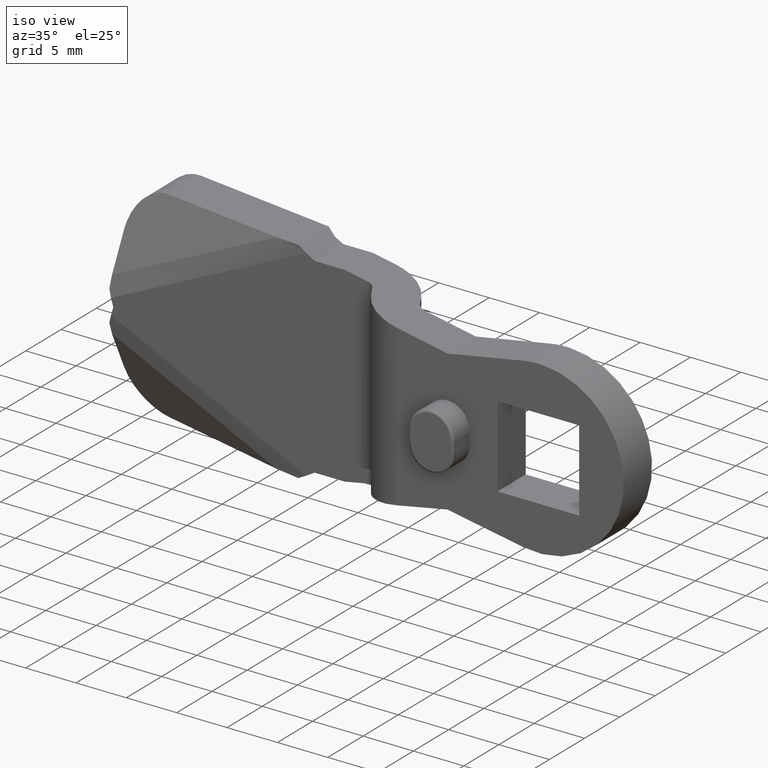
[diagram: clean part render]
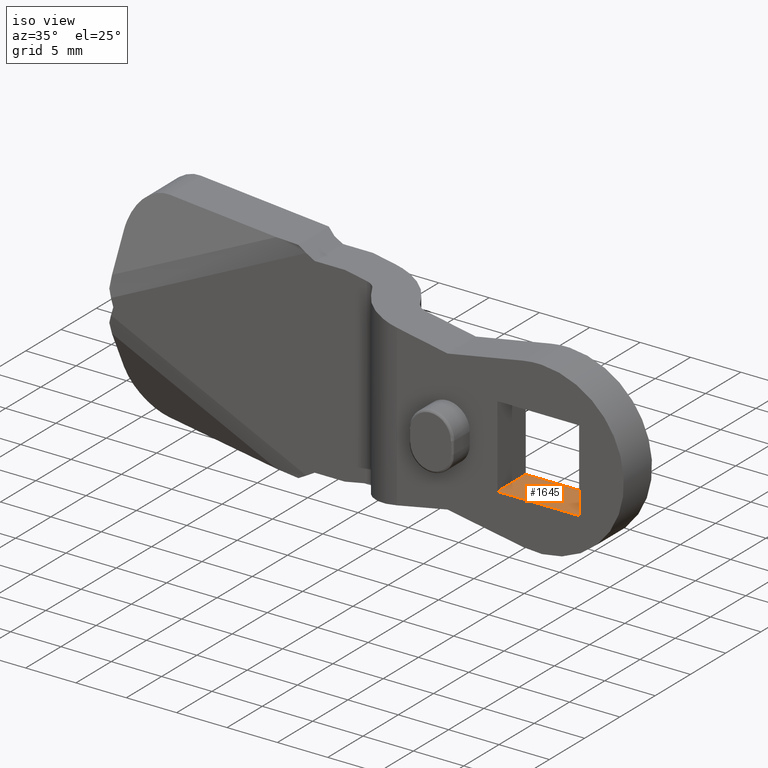
[diagram: same view with one face highlighted and labeled with its STEP entity id]
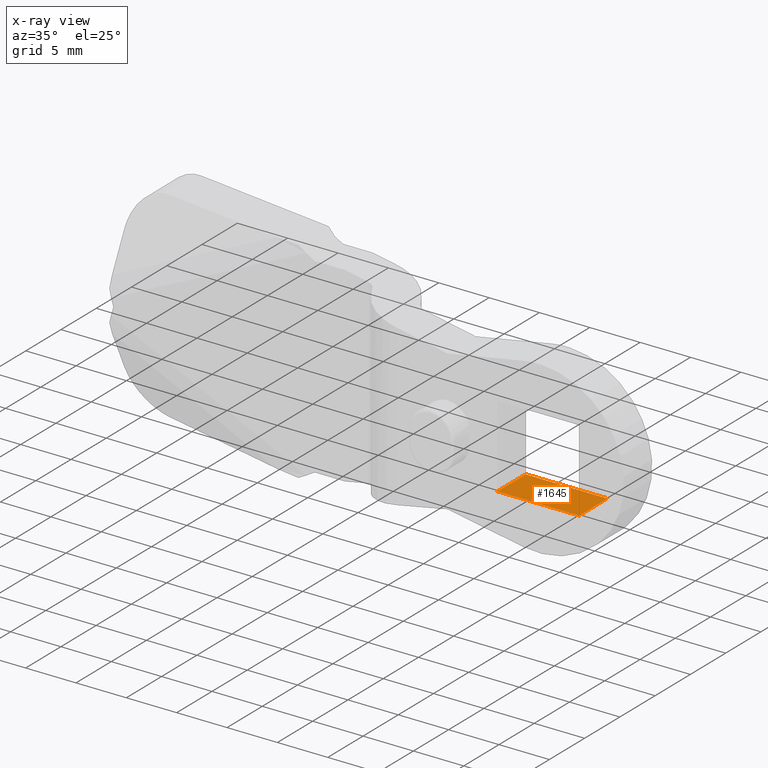
[diagram: x-ray of the same camera — body ghosted, the highlighted face saturated]
A machine part, iso view. The second image highlights one B-rep face of the part: STEP entity #1645.
The next image is the same camera in x-ray: the body ghosted, the highlighted face saturated — about 0% of this face is hidden behind the body in this view.
In plain terms, the highlighted face is a freeform B-spline surface patch.
Its self-contained STEP definition (entity closure, byte-faithful):
#1541=CARTESIAN_POINT('',(-4.050000192364635,-4.000000000000116,-4.050000192364680));
#1542=VERTEX_POINT('',#1541);
#1555=CARTESIAN_POINT('',(-4.050000192364635,-8.000000189999911,-4.050000192364680));
#1556=VERTEX_POINT('',#1555);
#1562=CARTESIAN_POINT('',(-4.050000192364635,-8.000000189999911,-4.050000192364680));
#1563=CARTESIAN_POINT('',(-4.050000192364635,-4.000000000000116,-4.050000192364680));
#1564=QUASI_UNIFORM_CURVE('',1,(#1562,#1563),.UNSPECIFIED.,.F.,.U.);
#1565=EDGE_CURVE('',#1556,#1542,#1564,.T.);
#1603=CARTESIAN_POINT('',(4.050000192364690,-4.000000000000116,-4.050000192364665));
#1604=VERTEX_POINT('',#1603);
#1610=CARTESIAN_POINT('',(4.050000192364690,-8.000000189999911,-4.050000192364665));
#1611=VERTEX_POINT('',#1610);
#1612=CARTESIAN_POINT('',(4.050000192364690,-8.000000189999911,-4.050000192364665));
#1613=CARTESIAN_POINT('',(4.050000192364690,-4.000000000000116,-4.050000192364665));
#1614=QUASI_UNIFORM_CURVE('',1,(#1612,#1613),.UNSPECIFIED.,.F.,.U.);
#1615=EDGE_CURVE('',#1611,#1604,#1614,.T.);
#1626=CARTESIAN_POINT('',(-4.454595195882492,-8.199800003991927,-4.050000192364680));
#1627=CARTESIAN_POINT('',(4.454595413141488,-8.199800003991927,-4.050000192364680));
#1628=CARTESIAN_POINT('',(-4.454595195882492,-3.800199899905792,-4.050000192364680));
#1629=CARTESIAN_POINT('',(4.454595413141488,-3.800199899905792,-4.050000192364680));
#1630=B_SPLINE_SURFACE_WITH_KNOTS('',1,1,((#1626,#1628),(#1627,#1629)),.UNSPECIFIED.,.F.,.F.,.U.,(2,2),(2,2),(0.0,8.909190609023980),(0.0,4.399600104086135),.UNSPECIFIED.);
#1631=CARTESIAN_POINT('',(-4.050000192364635,-4.000000000000116,-4.050000192364680));
#1632=CARTESIAN_POINT('',(4.050000192364690,-4.000000000000116,-4.050000192364665));
#1633=QUASI_UNIFORM_CURVE('',1,(#1631,#1632),.UNSPECIFIED.,.F.,.U.);
#1634=EDGE_CURVE('',#1542,#1604,#1633,.T.);
#1635=ORIENTED_EDGE('',*,*,#1634,.F.);
#1636=ORIENTED_EDGE('',*,*,#1565,.F.);
#1637=CARTESIAN_POINT('',(4.050000192364690,-8.000000189999911,-4.050000192364665));
#1638=CARTESIAN_POINT('',(-4.050000192364635,-8.000000189999911,-4.050000192364680));
#1639=QUASI_UNIFORM_CURVE('',1,(#1637,#1638),.UNSPECIFIED.,.F.,.U.);
#1640=EDGE_CURVE('',#1611,#1556,#1639,.T.);
#1641=ORIENTED_EDGE('',*,*,#1640,.F.);
#1642=ORIENTED_EDGE('',*,*,#1615,.T.);
#1643=EDGE_LOOP('',(#1635,#1636,#1641,#1642));
#1644=FACE_OUTER_BOUND('',#1643,.T.);
#1645=ADVANCED_FACE('',(#1644),#1630,.T.);